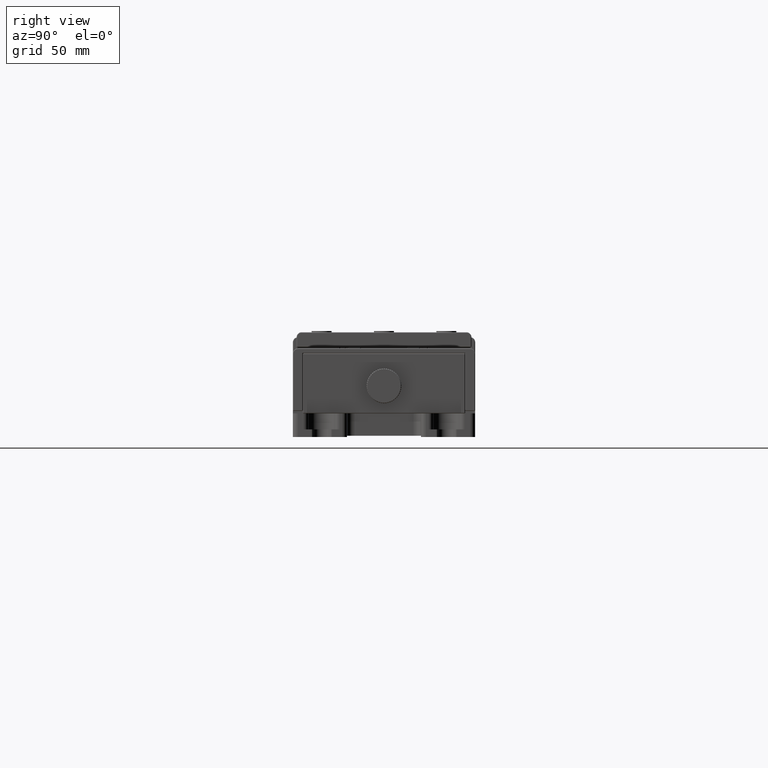
[diagram: clean part render]
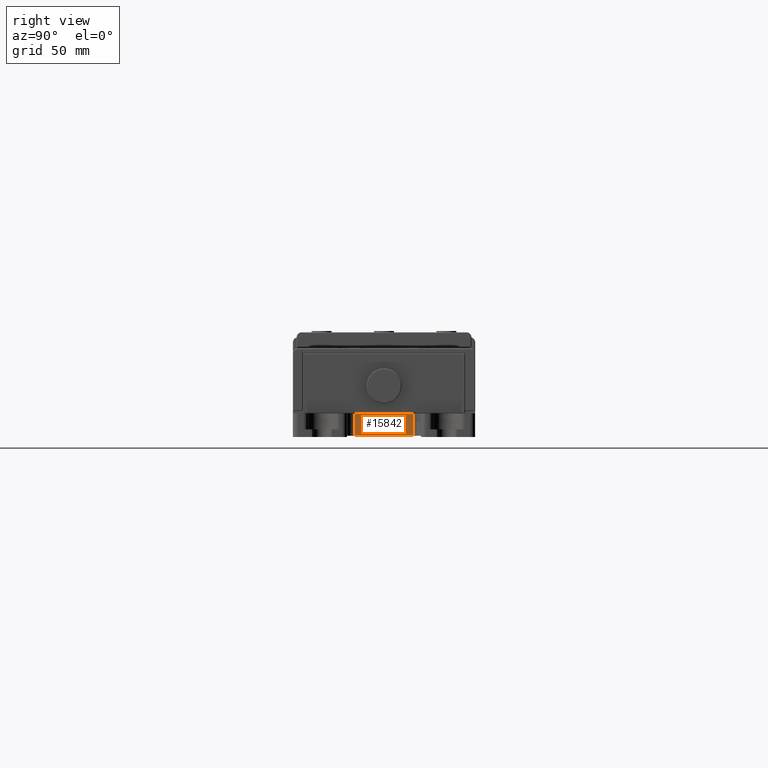
[diagram: same view with one face highlighted and labeled with its STEP entity id]
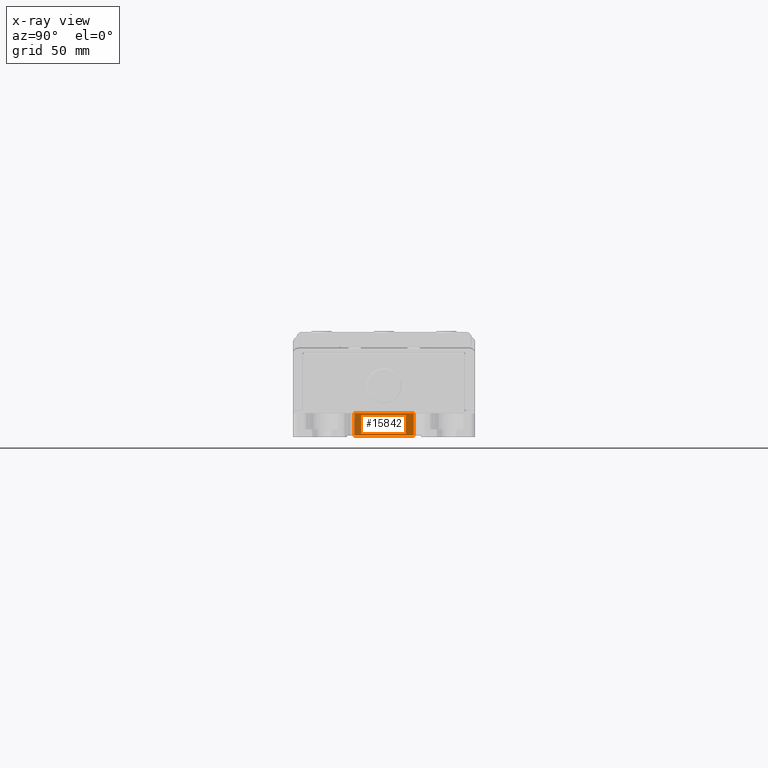
[diagram: x-ray of the same camera — body ghosted, the highlighted face saturated]
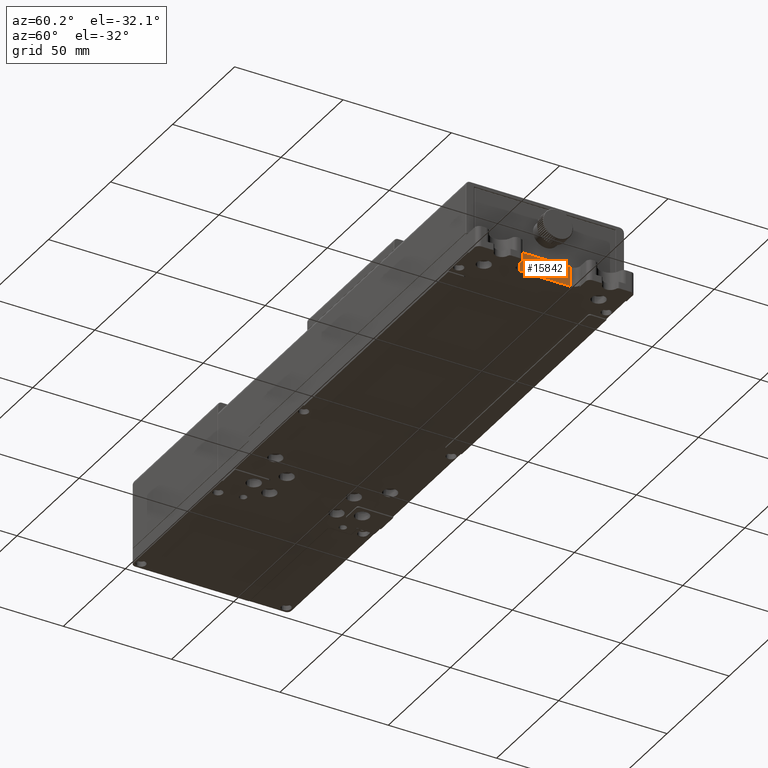
[diagram: same view with one face highlighted and labeled with its STEP entity id]
A machine part, right view. The second image highlights one B-rep face of the part: STEP entity #15842.
The next image is the same camera in x-ray: the body ghosted, the highlighted face saturated — about 0% of this face is hidden behind the body in this view.
A second angle (auxiliary view) of the same face is appended — the face is thin or edge-on in the first view.
In plain terms, the highlighted planar face has unit normal (-1, 0, 0).
Its self-contained STEP definition (entity closure, byte-faithful):
#185 = FACE_OUTER_BOUND ( 'NONE', #22865, .T. ) ;
#346 = VERTEX_POINT ( 'NONE', #7571 ) ;
#524 = DIRECTION ( 'NONE',  ( 0.000000000000000000, 0.000000000000000000, 1.000000000000000000 ) ) ;
#921 = ORIENTED_EDGE ( 'NONE', *, *, #63282, .T. ) ;
#1516 = CARTESIAN_POINT ( 'NONE',  ( 116.5747400185975948, 2.830802549747215124, 3.000000000000000000 ) ) ;
#1885 = CARTESIAN_POINT ( 'NONE',  ( 116.5747400185975948, 2.830802549747215124, -5.000000000000000000 ) ) ;
#4860 = DIRECTION ( 'NONE',  ( -1.000000000000000000, 0.000000000000000000, 0.000000000000000000 ) ) ;
#7571 = CARTESIAN_POINT ( 'NONE',  ( 116.5747400185975948, -20.76919745025280051, 4.000000000000000000 ) ) ;
#12481 = LINE ( 'NONE', #34520, #52815 ) ;
#12907 = ORIENTED_EDGE ( 'NONE', *, *, #50631, .T. ) ;
#15059 = CARTESIAN_POINT ( 'NONE',  ( 116.5747400185975948, 26.03080254974719665, -5.000000000000000000 ) ) ;
#15161 = CARTESIAN_POINT ( 'NONE',  ( 116.5747400185975948, -20.76919745025280051, -5.000000000000000000 ) ) ;
#15842 = ADVANCED_FACE ( 'NONE', ( #185 ), #22188, .F. ) ;
#17873 = VERTEX_POINT ( 'NONE', #15161 ) ;
#22188 = PLANE ( 'NONE',  #56202 ) ;
#22583 = VERTEX_POINT ( 'NONE', #1885 ) ;
#22865 = EDGE_LOOP ( 'NONE', ( #921, #35587, #54045, #12907 ) ) ;
#23941 = DIRECTION ( 'NONE',  ( 0.000000000000000000, 1.000000000000000000, 0.000000000000000000 ) ) ;
#26238 = VECTOR ( 'NONE', #60161, 1000.000000000000000 ) ;
#30002 = DIRECTION ( 'NONE',  ( 0.000000000000000000, 0.000000000000000000, 1.000000000000000000 ) ) ;
#32024 = LINE ( 'NONE', #15059, #26238 ) ;
#32870 = EDGE_CURVE ( 'NONE', #346, #37949, #34064, .T. ) ;
#34064 = LINE ( 'NONE', #67931, #51435 ) ;
#34520 = CARTESIAN_POINT ( 'NONE',  ( 116.5747400185975948, -20.76919745025280051, -5.000000000000000000 ) ) ;
#34662 = VECTOR ( 'NONE', #30002, 1000.000000000000000 ) ;
#35587 = ORIENTED_EDGE ( 'NONE', *, *, #66634, .T. ) ;
#37949 = VERTEX_POINT ( 'NONE', #53507 ) ;
#50385 = DIRECTION ( 'NONE',  ( 0.000000000000000000, 0.000000000000000000, -1.000000000000000000 ) ) ;
#50631 = EDGE_CURVE ( 'NONE', #346, #17873, #12481, .T. ) ;
#51435 = VECTOR ( 'NONE', #23941, 1000.000000000000000 ) ;
#52815 = VECTOR ( 'NONE', #50385, 1000.000000000000000 ) ;
#53507 = CARTESIAN_POINT ( 'NONE',  ( 116.5747400185975948, 2.830802549747215124, 4.000000000000000000 ) ) ;
#54045 = ORIENTED_EDGE ( 'NONE', *, *, #32870, .F. ) ;
#54291 = CARTESIAN_POINT ( 'NONE',  ( 116.5747400185975948, 26.03080254974719665, 5.000000000000000000 ) ) ;
#56202 = AXIS2_PLACEMENT_3D ( 'NONE', #54291, #4860, #524 ) ;
#60161 = DIRECTION ( 'NONE',  ( 0.000000000000000000, 1.000000000000000000, 0.000000000000000000 ) ) ;
#62814 = LINE ( 'NONE', #1516, #34662 ) ;
#63282 = EDGE_CURVE ( 'NONE', #17873, #22583, #32024, .T. ) ;
#66634 = EDGE_CURVE ( 'NONE', #22583, #37949, #62814, .T. ) ;
#67931 = CARTESIAN_POINT ( 'NONE',  ( 116.5747400185975948, -27.76919745025280051, 4.000000000000000000 ) ) ;